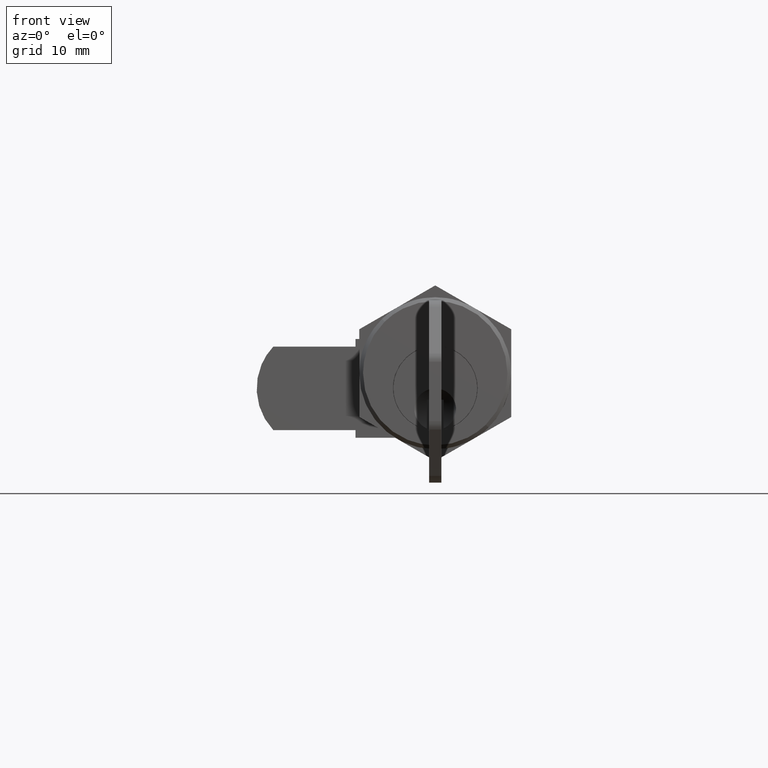
[diagram: clean part render]
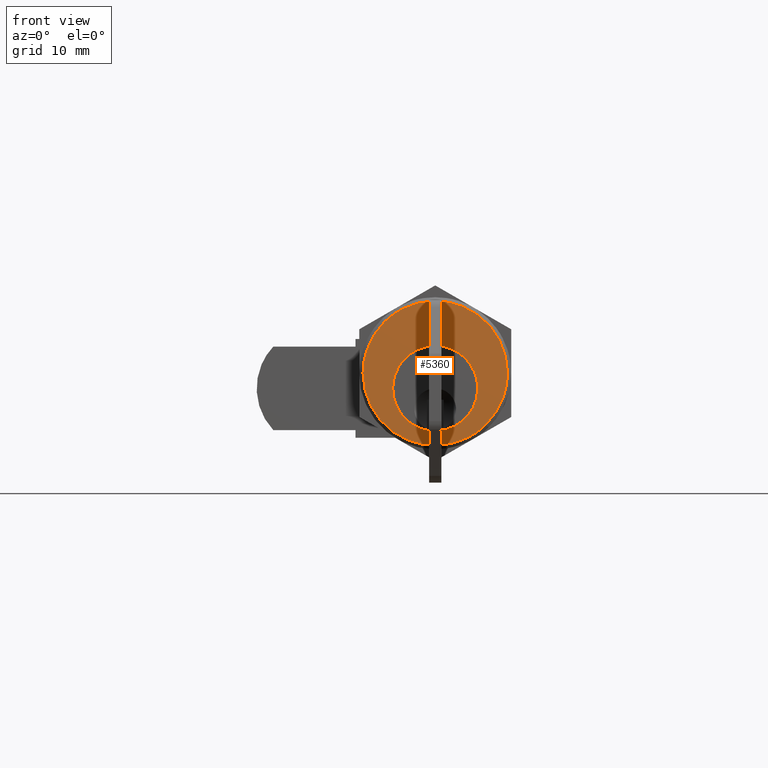
[diagram: same view with one face highlighted and labeled with its STEP entity id]
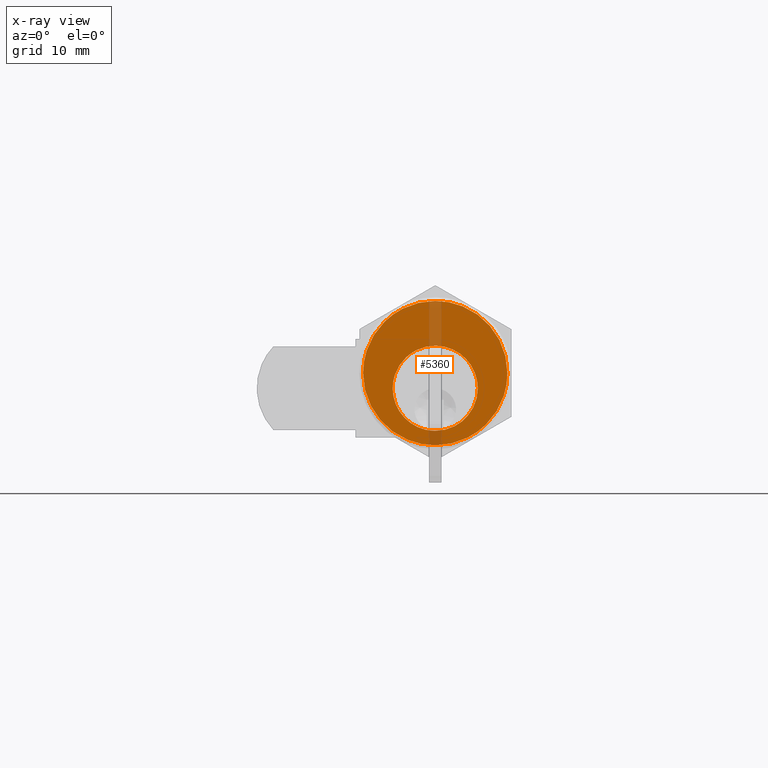
[diagram: x-ray of the same camera — body ghosted, the highlighted face saturated]
A machine part, front view. The second image highlights one B-rep face of the part: STEP entity #5360.
The next image is the same camera in x-ray: the body ghosted, the highlighted face saturated — about 7% of this face is hidden behind the body in this view.
In plain terms, the highlighted face is a freeform B-spline surface patch.
Its self-contained STEP definition (entity closure, byte-faithful):
#3697=CARTESIAN_POINT('',(-5.801229E-016,-4.277397165649464,-5.614397753405113));
#3698=VERTEX_POINT('',#3697);
#3704=CARTESIAN_POINT('',(0.0,-5.599999999999934,-1.999999142453526));
#3705=VERTEX_POINT('',#3704);
#3706=CARTESIAN_POINT('',(-5.801229E-016,-4.277397165649464,-5.614397753405113));
#3707=CARTESIAN_POINT('',(-5.274497E-016,-4.554826791900885,-5.286222517329124));
#3708=CARTESIAN_POINT('',(-4.227963E-016,-4.987887807870112,-4.634190120514821));
#3709=CARTESIAN_POINT('',(-2.266043E-016,-5.473618634714639,-3.411834954500096));
#3710=CARTESIAN_POINT('',(-8.539745E-017,-5.600211485892388,-2.532059542279801));
#3711=CARTESIAN_POINT('',(0.0,-5.599999999999934,-1.999999142453526));
#3712=B_SPLINE_CURVE_WITH_KNOTS('',3,(#3706,#3707,#3708,#3709,#3710,#3711),.UNSPECIFIED.,.F.,.U.,(4,1,1,4),(0.000000017276195,1.289171736502949,2.332773670459522,3.928889432847223),.UNSPECIFIED.);
#3713=EDGE_CURVE('',#3698,#3705,#3712,.T.);
#3715=CARTESIAN_POINT('',(0.0,0.0,3.600000000000000));
#3716=VERTEX_POINT('',#3715);
#3717=CARTESIAN_POINT('',(0.0,-5.599999999999934,-1.999999142453526));
#3718=CARTESIAN_POINT('',(0.0,-5.600040986110360,-1.633478746124516));
#3719=CARTESIAN_POINT('',(0.0,-5.530041078551527,-0.923363375402637));
#3720=CARTESIAN_POINT('',(0.0,-5.255234644541671,0.002923705185939));
#3721=CARTESIAN_POINT('',(0.0,-4.787958697038255,0.975657561716015));
#3722=CARTESIAN_POINT('',(0.0,-4.135925055045925,1.843586880372343));
#3723=CARTESIAN_POINT('',(0.0,-3.172764988987850,2.664132639076925));
#3724=CARTESIAN_POINT('',(0.0,-2.179395884797386,3.202966874510818));
#3725=CARTESIAN_POINT('',(0.0,-1.076626220830217,3.530025974871625));
#3726=CARTESIAN_POINT('',(0.0,-0.366516607757596,3.600049680152273));
#3727=CARTESIAN_POINT('',(0.0,0.0,3.600000000000000));
#3728=B_SPLINE_CURVE_WITH_KNOTS('',3,(#3717,#3718,#3719,#3720,#3721,#3722,#3723,#3724,#3725,#3726,#3727),.UNSPECIFIED.,.F.,.U.,(4,1,1,1,1,1,1,1,4),(0.000000072317187,1.099560016730246,2.130405729293038,2.886368345324817,4.329559860024922,5.360357040509298,6.666109649871526,7.696967975707429,8.796514140773150),.UNSPECIFIED.);
#3729=EDGE_CURVE('',#3705,#3716,#3728,.T.);
#3731=CARTESIAN_POINT('',(-5.828671E-016,3.831454731416122,2.084109724880831));
#3732=VERTEX_POINT('',#3731);
#3733=CARTESIAN_POINT('',(0.0,0.0,3.600000000000000));
#3734=CARTESIAN_POINT('',(-8.358715E-017,0.549456962910162,3.600250926694703));
#3735=CARTESIAN_POINT('',(-2.005781E-016,1.318492324315068,3.485876224931297));
#3736=CARTESIAN_POINT('',(-3.514082E-016,2.309968202207181,3.120273877914763));
#3737=CARTESIAN_POINT('',(-4.668775E-016,3.069001885641790,2.716811716288847));
#3738=CARTESIAN_POINT('',(-5.438589E-016,3.575035963309477,2.324720986306513));
#3739=CARTESIAN_POINT('',(-5.828671E-016,3.831454731416122,2.084109724880831));
#3740=B_SPLINE_CURVE_WITH_KNOTS('',3,(#3733,#3734,#3735,#3736,#3737,#3738,#3739),.UNSPECIFIED.,.F.,.U.,(4,1,1,1,4),(0.000000021428576,1.648271031613241,2.307569397485508,3.164677218958186,4.219569618126022),.UNSPECIFIED.);
#3741=EDGE_CURVE('',#3716,#3732,#3740,.T.);
#3837=CARTESIAN_POINT('',(0.0,5.599999999999933,-2.000000857546570));
#3838=VERTEX_POINT('',#3837);
#3839=CARTESIAN_POINT('',(-5.828671E-016,3.831454731416122,2.084109724880831));
#3840=CARTESIAN_POINT('',(-5.502821E-016,4.074861139051839,1.855788800624343));
#3841=CARTESIAN_POINT('',(-4.712296E-016,4.568484615229738,1.301873049720509));
#3842=CARTESIAN_POINT('',(-3.236006E-016,5.174653103497562,0.267446680964113));
#3843=CARTESIAN_POINT('',(-1.598980E-016,5.529555624503406,-0.879606623257632));
#3844=CARTESIAN_POINT('',(-4.762869E-017,5.600010310132293,-1.666269827378062));
#3845=CARTESIAN_POINT('',(0.0,5.599999999999933,-2.000000857546570));
#3846=B_SPLINE_CURVE_WITH_KNOTS('',3,(#3839,#3840,#3841,#3842,#3843,#3844,#3845),.UNSPECIFIED.,.F.,.U.,(4,1,1,1,4),(0.000000023585497,1.001206321706578,2.216970362367135,3.575739670573740,4.576945968695310),.UNSPECIFIED.);
#3847=EDGE_CURVE('',#3732,#3838,#3846,.T.);
#3849=CARTESIAN_POINT('',(0.0,0.0,-7.600000000000000));
#3850=VERTEX_POINT('',#3849);
#3851=CARTESIAN_POINT('',(0.0,5.599999999999933,-2.000000857546570));
#3852=CARTESIAN_POINT('',(0.0,5.600034896392980,-2.366518967358575));
#3853=CARTESIAN_POINT('',(0.0,5.525554634659184,-3.122462219837250));
#3854=CARTESIAN_POINT('',(0.0,5.211777202907642,-4.134412471660342));
#3855=CARTESIAN_POINT('',(0.0,4.708477511722512,-5.090087828463926));
#3856=CARTESIAN_POINT('',(0.0,4.037286037856132,-5.939407979887712));
#3857=CARTESIAN_POINT('',(0.0,3.222397010862625,-6.616506855941538));
#3858=CARTESIAN_POINT('',(0.0,2.323040896811156,-7.125978041816046));
#3859=CARTESIAN_POINT('',(0.0,1.282775122590423,-7.498233538136516));
#3860=CARTESIAN_POINT('',(0.0,0.458150689564993,-7.600105926618456));
#3861=CARTESIAN_POINT('',(0.0,0.0,-7.600000000000000));
#3862=B_SPLINE_CURVE_WITH_KNOTS('',3,(#3851,#3852,#3853,#3854,#3855,#3856,#3857,#3858,#3859,#3860,#3861),.UNSPECIFIED.,.F.,.U.,(4,1,1,1,1,1,1,1,4),(0.000000072319423,1.099560016732261,2.267852736690491,3.161263592230510,4.329559860026151,5.497814866997820,6.322494186538415,7.422072166167181,8.796514140773088),.UNSPECIFIED.);
#3863=EDGE_CURVE('',#3838,#3850,#3862,.T.);
#3865=CARTESIAN_POINT('',(0.0,0.0,-7.600000000000000));
#3866=CARTESIAN_POINT('',(-5.845368E-017,-0.430994255932745,-7.600087838842204));
#3867=CARTESIAN_POINT('',(-1.512839E-016,-1.115455335217800,-7.520569544705826));
#3868=CARTESIAN_POINT('',(-2.797350E-016,-2.062558974653109,-7.228830159066007));
#3869=CARTESIAN_POINT('',(-3.792257E-016,-2.796129739934323,-6.876120036384244));
#3870=CARTESIAN_POINT('',(-4.846397E-016,-3.573374857873546,-6.347113962231767));
#3871=CARTESIAN_POINT('',(-5.468405E-016,-4.031997801121121,-5.904908370655975));
#3872=CARTESIAN_POINT('',(-5.801229E-016,-4.277397165649464,-5.614397753405113));
#3873=B_SPLINE_CURVE_WITH_KNOTS('',3,(#3865,#3866,#3867,#3868,#3869,#3870,#3871,#3872),.UNSPECIFIED.,.F.,.U.,(4,1,1,1,1,4),(0.000000022076857,1.292964904514813,2.053540146442071,2.966207511449105,3.726778777560319,4.867627768167899),.UNSPECIFIED.);
#3874=EDGE_CURVE('',#3850,#3698,#3873,.T.);
#3898=CARTESIAN_POINT('',(0.0,0.0,-9.500000000000000));
#3899=VERTEX_POINT('',#3898);
#3900=CARTESIAN_POINT('',(-0.000000081236568,-6.658637860230846,-6.775879072886947));
#3901=VERTEX_POINT('',#3900);
#3902=CARTESIAN_POINT('',(0.0,0.0,-9.500000000000000));
#3903=CARTESIAN_POINT('',(-6.563783E-009,-0.538007155719898,-9.500041382880662));
#3904=CARTESIAN_POINT('',(-0.000000020160119,-1.652444650660172,-9.405095664430721));
#3905=CARTESIAN_POINT('',(-0.000000038808906,-3.181011411254303,-8.996975942019033));
#3906=CARTESIAN_POINT('',(-0.000000060225471,-4.936441901411593,-8.203115450922232));
#3907=CARTESIAN_POINT('',(-0.000000073547742,-6.028415430997780,-7.395659155715205));
#3908=CARTESIAN_POINT('',(-0.000000081236568,-6.658637860230846,-6.775879072886947));
#3909=B_SPLINE_CURVE_WITH_KNOTS('',3,(#3902,#3903,#3904,#3905,#3906,#3907,#3908),.UNSPECIFIED.,.F.,.U.,(4,1,1,1,4),(5.945162E-009,1.614028095716164,3.343353098095219,4.726796932293824,7.378424619770510),.UNSPECIFIED.);
#3910=EDGE_CURVE('',#3899,#3901,#3909,.T.);
#3912=CARTESIAN_POINT('',(0.0,9.499999999999979,-0.000000651134595));
#3913=VERTEX_POINT('',#3912);
#3914=CARTESIAN_POINT('',(0.0,9.499999999999979,-0.000000651134595));
#3915=CARTESIAN_POINT('',(0.0,9.500172844914497,-0.738372493054829));
#3916=CARTESIAN_POINT('',(0.0,9.377035319856663,-1.787528729304079));
#3917=CARTESIAN_POINT('',(0.0,8.954363303332368,-3.244881968092654));
#3918=CARTESIAN_POINT('',(0.0,8.386424491028494,-4.570084108744502));
#3919=CARTESIAN_POINT('',(0.0,7.547601848306656,-5.842244709355836));
#3920=CARTESIAN_POINT('',(0.0,6.434622433311238,-7.040288490333189));
#3921=CARTESIAN_POINT('',(0.0,5.301792077389562,-7.935640830472593));
#3922=CARTESIAN_POINT('',(0.0,4.038674395563116,-8.630780317685257));
#3923=CARTESIAN_POINT('',(0.0,2.803617136003583,-9.107206943146919));
#3924=CARTESIAN_POINT('',(0.0,1.476700228286849,-9.422320559412325));
#3925=CARTESIAN_POINT('',(0.0,0.505191343800767,-9.500036567869840));
#3926=CARTESIAN_POINT('',(0.0,0.0,-9.500000000000000));
#3927=B_SPLINE_CURVE_WITH_KNOTS('',3,(#3914,#3915,#3916,#3917,#3918,#3919,#3920,#3921,#3922,#3923,#3924,#3925,#3926),.UNSPECIFIED.,.F.,.U.,(4,1,1,1,1,1,1,1,1,1,4),(0.000000010982353,2.215068119105396,3.147742797391457,4.546752647816692,6.528668375925706,7.694493671483058,9.443237316342046,10.842240465747251,12.008083809033410,13.407079989120700,14.922658370321139),.UNSPECIFIED.);
#3928=EDGE_CURVE('',#3913,#3899,#3927,.T.);
#3930=CARTESIAN_POINT('',(-0.000000081236566,6.658637860230849,6.775879072886950));
#3931=VERTEX_POINT('',#3930);
#3932=CARTESIAN_POINT('',(-0.000000081236566,6.658637860230849,6.775879072886950));
#3933=CARTESIAN_POINT('',(-0.000000074964409,7.191258329466367,6.252723174272709));
#3934=CARTESIAN_POINT('',(-0.000000062753339,8.008202800107464,5.234207204175667));
#3935=CARTESIAN_POINT('',(-0.000000044638797,8.778532360338840,3.723287127794827));
#3936=CARTESIAN_POINT('',(-0.000000024494917,9.340268237467509,2.043101574240280));
#3937=CARTESIAN_POINT('',(-9.893124E-009,9.500243425458914,0.825177188850991));
#3938=CARTESIAN_POINT('',(0.0,9.499999999999979,-0.000000651134595));
#3939=B_SPLINE_CURVE_WITH_KNOTS('',3,(#3932,#3933,#3934,#3935,#3936,#3937,#3938),.UNSPECIFIED.,.F.,.U.,(4,1,1,1,4),(4.273157E-009,2.239694782669501,3.889995571348798,5.068782297054669,7.544234611619492),.UNSPECIFIED.);
#3940=EDGE_CURVE('',#3931,#3913,#3939,.T.);
#4017=CARTESIAN_POINT('',(0.0,-9.499999999999979,0.000000651134607));
#4018=VERTEX_POINT('',#4017);
#4019=CARTESIAN_POINT('',(-0.000000081236568,-6.658637860230846,-6.775879072886947));
#4020=CARTESIAN_POINT('',(-0.000000076284272,-7.079069031856271,-6.362811825446395));
#4021=CARTESIAN_POINT('',(-0.000000067968055,-7.664441701468668,-5.669162493201704));
#4022=CARTESIAN_POINT('',(-0.000000053967045,-8.393947224402895,-4.501349071501202));
#4023=CARTESIAN_POINT('',(-0.000000040253951,-8.924489574307572,-3.357550443264559));
#4024=CARTESIAN_POINT('',(-0.000000021669309,-9.379288494296905,-1.807419693434623));
#4025=CARTESIAN_POINT('',(-8.008527E-009,-9.500116190827479,-0.667984393564515));
#4026=CARTESIAN_POINT('',(0.0,-9.499999999999979,0.000000651134607));
#4027=B_SPLINE_CURVE_WITH_KNOTS('',3,(#4019,#4020,#4021,#4022,#4023,#4024,#4025,#4026),.UNSPECIFIED.,.F.,.U.,(4,1,1,1,1,4),(4.272790E-009,1.768179975461616,2.711209899969645,4.125752461535269,5.540297279134939,7.544234611619499),.UNSPECIFIED.);
#4028=EDGE_CURVE('',#3901,#4018,#4027,.T.);
#4079=CARTESIAN_POINT('',(0.0,0.0,9.500000000000000));
#4080=VERTEX_POINT('',#4079);
#4081=CARTESIAN_POINT('',(0.0,0.0,9.500000000000000));
#4082=CARTESIAN_POINT('',(-9.846078E-009,0.807043824551508,9.500247747402682));
#4083=CARTESIAN_POINT('',(-0.000000023440954,1.921361625874875,9.357116815333180));
#4084=CARTESIAN_POINT('',(-0.000000041806926,3.426747212951132,8.885761306270194));
#4085=CARTESIAN_POINT('',(-0.000000060225690,4.936459987922648,8.203162673633472));
#4086=CARTESIAN_POINT('',(-0.000000073547666,6.028409278810940,7.395643587618218));
#4087=CARTESIAN_POINT('',(-0.000000081236566,6.658637860230849,6.775879072886950));
#4088=B_SPLINE_CURVE_WITH_KNOTS('',3,(#4081,#4082,#4083,#4084,#4085,#4086,#4087),.UNSPECIFIED.,.F.,.U.,(4,1,1,1,4),(5.945116E-009,2.421050745310725,3.343353098095176,4.726796932293806,7.378424619770509),.UNSPECIFIED.);
#4089=EDGE_CURVE('',#4080,#3931,#4088,.T.);
#4091=CARTESIAN_POINT('',(0.0,-9.499999999999979,0.000000651134607));
#4092=CARTESIAN_POINT('',(0.0,-9.500154217483209,0.738369797536005));
#4093=CARTESIAN_POINT('',(0.0,-9.367924687840636,1.865246618718074));
#4094=CARTESIAN_POINT('',(0.0,-8.881899344611844,3.467326859485474));
#4095=CARTESIAN_POINT('',(0.0,-8.198255067024661,4.913028811996124));
#4096=CARTESIAN_POINT('',(0.0,-7.251851815822861,6.205563894173166));
#4097=CARTESIAN_POINT('',(0.0,-6.248591089289712,7.184358523963762));
#4098=CARTESIAN_POINT('',(0.0,-5.231262849325113,7.968338060867170));
#4099=CARTESIAN_POINT('',(0.0,-3.839876957056778,8.756684196235414));
#4100=CARTESIAN_POINT('',(0.0,-2.020746715662058,9.357604645416730));
#4101=CARTESIAN_POINT('',(0.0,-0.660635544043446,9.500086203462775));
#4102=CARTESIAN_POINT('',(0.0,0.0,9.500000000000000));
#4103=B_SPLINE_CURVE_WITH_KNOTS('',3,(#4091,#4092,#4093,#4094,#4095,#4096,#4097,#4098,#4099,#4100,#4101,#4102),.UNSPECIFIED.,.F.,.U.,(4,1,1,1,1,1,1,1,1,4),(0.000000010980793,2.215068119104403,3.380911749742507,5.013085417235351,6.995001212510972,8.160826444931239,9.210072241644227,10.842240465747230,12.940750242846610,14.922658370321130),.UNSPECIFIED.);
#4104=EDGE_CURVE('',#4018,#4080,#4103,.T.);
#5339=CARTESIAN_POINT('',(0.0,10.449049963174289,10.449049963174311));
#5340=CARTESIAN_POINT('',(0.0,-10.449050472793999,10.449049963174311));
#5341=CARTESIAN_POINT('',(0.0,10.449049963174289,-10.449050472794021));
#5342=CARTESIAN_POINT('',(0.0,-10.449050472793999,-10.449050472794021));
#5343=B_SPLINE_SURFACE_WITH_KNOTS('',1,1,((#5339,#5341),(#5340,#5342)),.UNSPECIFIED.,.F.,.F.,.U.,(2,2),(2,2),(0.0,20.898100435968288),(0.0,20.898100435968342),.UNSPECIFIED.);
#5344=ORIENTED_EDGE('',*,*,#3910,.T.);
#5345=ORIENTED_EDGE('',*,*,#4028,.T.);
#5346=ORIENTED_EDGE('',*,*,#4104,.T.);
#5347=ORIENTED_EDGE('',*,*,#4089,.T.);
#5348=ORIENTED_EDGE('',*,*,#3940,.T.);
#5349=ORIENTED_EDGE('',*,*,#3928,.T.);
#5350=EDGE_LOOP('',(#5344,#5345,#5346,#5347,#5348,#5349));
#5351=FACE_OUTER_BOUND('',#5350,.T.);
#5352=ORIENTED_EDGE('',*,*,#3729,.F.);
#5353=ORIENTED_EDGE('',*,*,#3713,.F.);
#5354=ORIENTED_EDGE('',*,*,#3874,.F.);
#5355=ORIENTED_EDGE('',*,*,#3863,.F.);
#5356=ORIENTED_EDGE('',*,*,#3847,.F.);
#5357=ORIENTED_EDGE('',*,*,#3741,.F.);
#5358=EDGE_LOOP('',(#5352,#5353,#5354,#5355,#5356,#5357));
#5359=FACE_BOUND('',#5358,.T.);
#5360=ADVANCED_FACE('',(#5351,#5359),#5343,.F.);